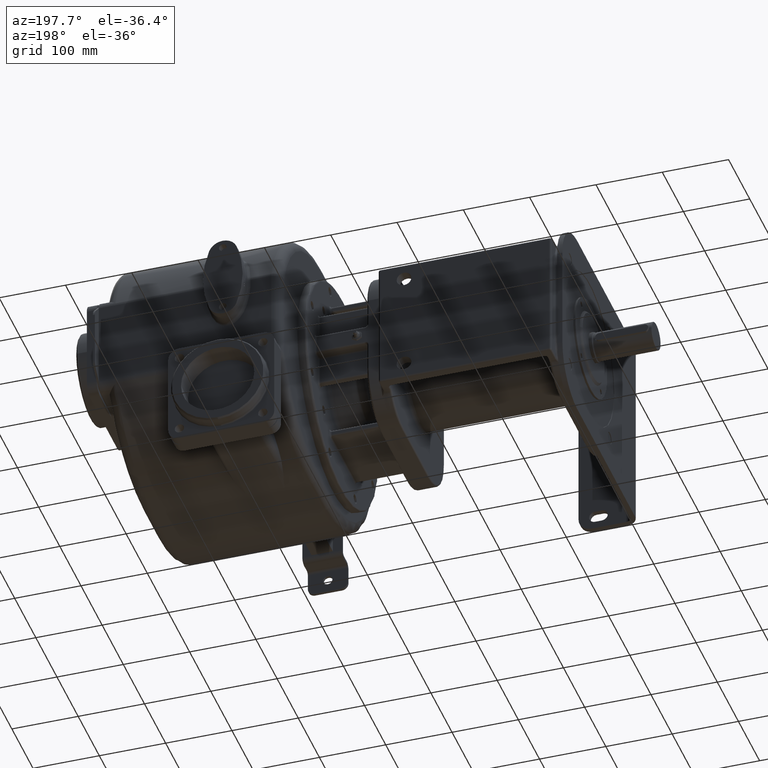
[diagram: clean part render]
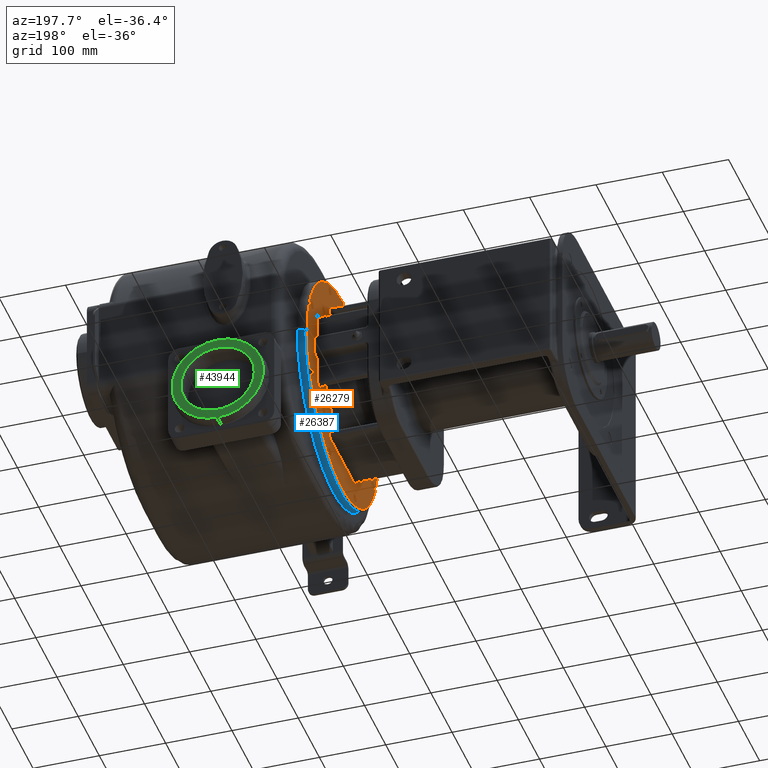
[diagram: same view with three faces highlighted in distinct colors, each labeled with its STEP entity id]
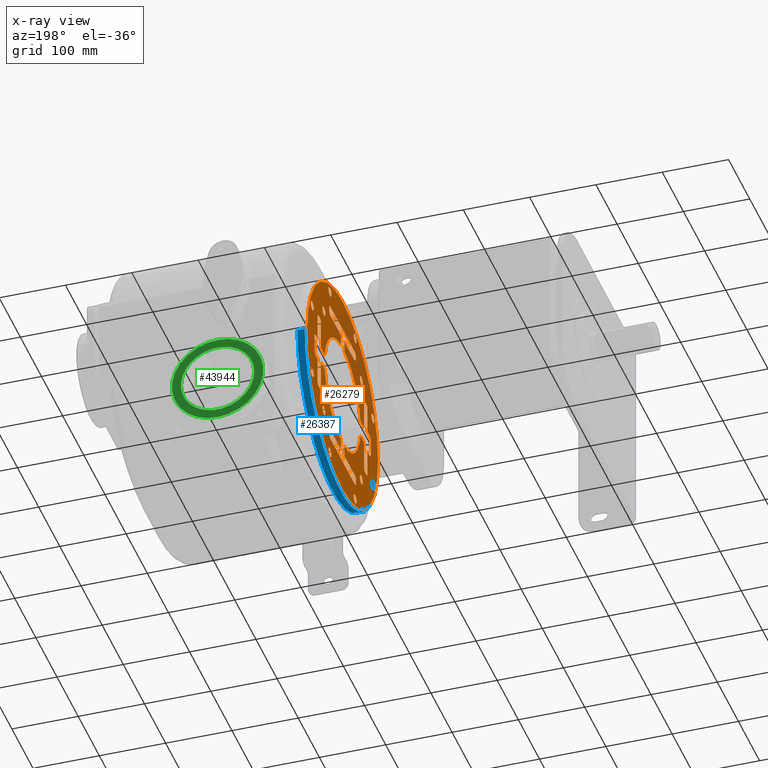
[diagram: x-ray of the same camera — body ghosted, the three highlighted faces saturated]
A machine part, auxiliary view with three faces highlighted in distinct colors.
The next image is the same camera in x-ray (body ghosted, the three faces saturated) — at least one of them is partly hidden behind the body in this view.
Their STEP definitions:

[orange] entity #26279 — the highlighted planar face has unit normal (-1, 0, 0).
#4738=CARTESIAN_POINT('',(-9.45E1,2.E2,0.E0));
#4739=DIRECTION('',(1.E0,0.E0,0.E0));
#4740=DIRECTION('',(0.E0,1.E0,0.E0));
#4741=AXIS2_PLACEMENT_3D('',#4738,#4739,#4740);
#4743=CARTESIAN_POINT('',(-9.45E1,2.E2,0.E0));
#4744=DIRECTION('',(1.E0,0.E0,0.E0));
#4745=DIRECTION('',(0.E0,-1.E0,0.E0));
#4746=AXIS2_PLACEMENT_3D('',#4743,#4744,#4745);
#4748=DIRECTION('',(0.E0,1.406874616837E-12,-1.E0));
#4749=VECTOR('',#4748,3.999999999908E0);
#4750=CARTESIAN_POINT('',(-9.45E1,2.63E2,-1.08E2));
#4751=LINE('',#4750,#4749);
#4752=CARTESIAN_POINT('',(-9.45E1,2.57E2,-1.12E2));
#4753=DIRECTION('',(-1.E0,0.E0,0.E0));
#4754=DIRECTION('',(0.E0,1.E0,0.E0));
#4755=AXIS2_PLACEMENT_3D('',#4752,#4753,#4754);
#4757=DIRECTION('',(0.E0,-1.E0,-4.886539516109E-14));
#4758=VECTOR('',#4757,1.139999999999E2);
#4759=CARTESIAN_POINT('',(-9.45E1,2.57E2,-1.18E2));
#4760=LINE('',#4759,#4758);
#4761=CARTESIAN_POINT('',(-9.45E1,1.43E2,-1.12E2));
#4762=DIRECTION('',(-1.E0,0.E0,0.E0));
#4763=DIRECTION('',(0.E0,0.E0,-1.E0));
#4764=AXIS2_PLACEMENT_3D('',#4761,#4762,#4763);
#4766=DIRECTION('',(0.E0,-1.392663762122E-12,1.E0));
#4767=VECTOR('',#4766,3.999999999908E0);
#4768=CARTESIAN_POINT('',(-9.45E1,1.37E2,-1.12E2));
#4769=LINE('',#4768,#4767);
#4770=CARTESIAN_POINT('',(-9.45E1,1.43E2,-1.08E2));
#4771=DIRECTION('',(-1.E0,0.E0,0.E0));
#4772=DIRECTION('',(0.E0,-1.E0,0.E0));
#4773=AXIS2_PLACEMENT_3D('',#4770,#4771,#4772);
#4775=DIRECTION('',(0.E0,1.E0,3.776027110039E-13));
#4776=VECTOR('',#4775,4.9E1);
#4777=CARTESIAN_POINT('',(-9.45E1,1.43E2,-1.02E2));
#4778=LINE('',#4777,#4776);
#4779=DIRECTION('',(-3.852411965349E-8,0.E0,1.E0));
#4780=VECTOR('',#4779,1.744591613903E1);
#4781=CARTESIAN_POINT('',(-9.45E1,1.92E2,-1.02E2));
#4782=LINE('',#4781,#4780);
#4783=CARTESIAN_POINT('',(-9.45E1,2.E2,0.E0));
#4784=DIRECTION('',(1.E0,0.E0,0.E0));
#4785=DIRECTION('',(0.E0,-9.882162509261E-1,-1.530641741410E-1));
#4786=AXIS2_PLACEMENT_3D('',#4783,#4784,#4785);
#4788=DIRECTION('',(3.570827083382E-8,-1.E0,0.E0));
#4789=VECTOR('',#4788,1.806911714591E1);
#4790=CARTESIAN_POINT('',(-9.450000064522E1,1.160691171459E2,-1.3E1));
#4791=LINE('',#4790,#4789);
#4792=DIRECTION('',(0.E0,-2.932603654871E-13,-1.E0));
#4793=VECTOR('',#4792,4.399999999991E1);
#4794=CARTESIAN_POINT('',(-9.45E1,9.8E1,-1.3E1));
#4795=LINE('',#4794,#4793);
#4796=CARTESIAN_POINT('',(-9.45E1,9.2E1,-5.7E1));
#4797=DIRECTION('',(-1.E0,0.E0,0.E0));
#4798=DIRECTION('',(0.E0,1.E0,0.E0));
#4799=AXIS2_PLACEMENT_3D('',#4796,#4797,#4798);
#4801=DIRECTION('',(0.E0,-1.E0,-1.394440118961E-12));
#4802=VECTOR('',#4801,3.999999999908E0);
#4803=CARTESIAN_POINT('',(-9.45E1,9.2E1,-6.299999999998E1));
#4804=LINE('',#4803,#4802);
#4805=CARTESIAN_POINT('',(-9.45E1,8.8E1,-5.7E1));
#4806=DIRECTION('',(-1.E0,0.E0,0.E0));
#4807=DIRECTION('',(0.E0,0.E0,-1.E0));
#4808=AXIS2_PLACEMENT_3D('',#4805,#4806,#4807);
#4810=DIRECTION('',(0.E0,-4.740595380635E-13,1.E0));
#4811=VECTOR('',#4810,3.9E1);
#4812=CARTESIAN_POINT('',(-9.45E1,8.200000000002E1,-5.7E1));
#4813=LINE('',#4812,#4811);
#4814=DIRECTION('',(0.E0,-1.E0,2.058994949847E-12));
#4815=VECTOR('',#4814,9.E0);
#4816=CARTESIAN_POINT('',(-9.45E1,8.2E1,-1.8E1));
#4817=LINE('',#4816,#4815);
#4818=CARTESIAN_POINT('',(-9.45E1,7.3E1,-1.2E1));
#4819=DIRECTION('',(-1.E0,0.E0,0.E0));
#4820=DIRECTION('',(0.E0,0.E0,-1.E0));
#4821=AXIS2_PLACEMENT_3D('',#4818,#4819,#4820);
#4823=DIRECTION('',(0.E0,2.332948649088E-13,1.E0));
#4824=VECTOR('',#4823,2.399999999991E1);
#4825=CARTESIAN_POINT('',(-9.45E1,6.700000000001E1,-1.199999999991E1));
#4826=LINE('',#4825,#4824);
#4827=CARTESIAN_POINT('',(-9.45E1,7.3E1,1.2E1));
#4828=DIRECTION('',(-1.E0,0.E0,0.E0));
#4829=DIRECTION('',(0.E0,-1.E0,0.E0));
#4830=AXIS2_PLACEMENT_3D('',#4827,#4828,#4829);
#4832=DIRECTION('',(0.E0,1.E0,1.436085818179E-12));
#4833=VECTOR('',#4832,8.999999999908E0);
#4834=CARTESIAN_POINT('',(-9.45E1,7.300000000009E1,1.799999999999E1));
#4835=LINE('',#4834,#4833);
#4836=DIRECTION('',(0.E0,3.312222291320E-13,1.E0));
#4837=VECTOR('',#4836,3.899999999991E1);
#4838=CARTESIAN_POINT('',(-9.45E1,8.2E1,1.8E1));
#4839=LINE('',#4838,#4837);
#4840=CARTESIAN_POINT('',(-9.45E1,8.8E1,5.7E1));
#4841=DIRECTION('',(-1.E0,0.E0,0.E0));
#4842=DIRECTION('',(0.E0,-1.E0,0.E0));
#4843=AXIS2_PLACEMENT_3D('',#4840,#4841,#4842);
#4845=DIRECTION('',(0.E0,1.E0,1.394440118961E-12));
#4846=VECTOR('',#4845,3.999999999908E0);
#4847=CARTESIAN_POINT('',(-9.45E1,8.8E1,6.299999999998E1));
#4848=LINE('',#4847,#4846);
#4849=CARTESIAN_POINT('',(-9.45E1,9.2E1,5.7E1));
#4850=DIRECTION('',(-1.E0,0.E0,0.E0));
#4851=DIRECTION('',(0.E0,0.E0,1.E0));
#4852=AXIS2_PLACEMENT_3D('',#4849,#4850,#4851);
#4854=DIRECTION('',(0.E0,4.205121099817E-13,-1.E0));
#4855=VECTOR('',#4854,4.4E1);
#4856=CARTESIAN_POINT('',(-9.45E1,9.799999999998E1,5.7E1));
#4857=LINE('',#4856,#4855);
#4858=DIRECTION('',(-3.570794759402E-8,1.E0,0.E0));
#4859=VECTOR('',#4858,1.806911714581E1);
#4860=CARTESIAN_POINT('',(-9.45E1,9.8E1,1.3E1));
#4861=LINE('',#4860,#4859);
#4862=CARTESIAN_POINT('',(-9.45E1,2.E2,0.E0));
#4863=DIRECTION('',(-1.E0,0.E0,0.E0));
#4864=DIRECTION('',(0.E0,-9.882162509262E-1,1.530641741404E-1));
#4865=AXIS2_PLACEMENT_3D('',#4862,#4863,#4864);
#4867=DIRECTION('',(3.852341586850E-8,0.E0,1.E0));
#4868=VECTOR('',#4867,1.744591613891E1);
#4869=CARTESIAN_POINT('',(-9.450000067208E1,1.92E2,8.455408386109E1));
#4870=LINE('',#4869,#4868);
#4871=DIRECTION('',(0.E0,-1.E0,2.630458209533E-13));
#4872=VECTOR('',#4871,4.899999999991E1);
#4873=CARTESIAN_POINT('',(-9.45E1,1.92E2,1.02E2));
#4874=LINE('',#4873,#4872);
#4875=CARTESIAN_POINT('',(-9.45E1,1.43E2,1.08E2));
#4876=DIRECTION('',(-1.E0,0.E0,0.E0));
#4877=DIRECTION('',(0.E0,0.E0,-1.E0));
#4878=AXIS2_PLACEMENT_3D('',#4875,#4876,#4877);
#4880=DIRECTION('',(0.E0,-1.392663762122E-12,1.E0));
#4881=VECTOR('',#4880,3.999999999908E0);
#4882=CARTESIAN_POINT('',(-9.45E1,1.37E2,1.08E2));
#4883=LINE('',#4882,#4881);
#4884=CARTESIAN_POINT('',(-9.45E1,1.43E2,1.12E2));
#4885=DIRECTION('',(-1.E0,0.E0,0.E0));
#4886=DIRECTION('',(0.E0,-1.E0,0.E0));
#4887=AXIS2_PLACEMENT_3D('',#4884,#4885,#4886);
#4889=DIRECTION('',(0.E0,1.E0,4.911470840170E-14));
#4890=VECTOR('',#4889,1.139999999999E2);
#4891=CARTESIAN_POINT('',(-9.45E1,1.43E2,1.18E2));
#4892=LINE('',#4891,#4890);
#4893=CARTESIAN_POINT('',(-9.45E1,2.57E2,1.12E2));
#4894=DIRECTION('',(-1.E0,0.E0,0.E0));
#4895=DIRECTION('',(0.E0,0.E0,1.E0));
#4896=AXIS2_PLACEMENT_3D('',#4893,#4894,#4895);
#4898=DIRECTION('',(0.E0,1.406874616837E-12,-1.E0));
#4899=VECTOR('',#4898,3.999999999908E0);
#4900=CARTESIAN_POINT('',(-9.45E1,2.63E2,1.12E2));
#4901=LINE('',#4900,#4899);
#4902=CARTESIAN_POINT('',(-9.45E1,2.57E2,1.08E2));
#4903=DIRECTION('',(-1.E0,0.E0,0.E0));
#4904=DIRECTION('',(0.E0,1.E0,0.E0));
#4905=AXIS2_PLACEMENT_3D('',#4902,#4903,#4904);
#4907=DIRECTION('',(0.E0,-1.E0,-3.773126935608E-13));
#4908=VECTOR('',#4907,4.9E1);
#4909=CARTESIAN_POINT('',(-9.45E1,2.57E2,1.02E2));
#4910=LINE('',#4909,#4908);
#4911=DIRECTION('',(-3.852411965349E-8,0.E0,-1.E0));
#4912=VECTOR('',#4911,1.744591613903E1);
#4913=CARTESIAN_POINT('',(-9.45E1,2.08E2,1.02E2));
#4914=LINE('',#4913,#4912);
#4915=CARTESIAN_POINT('',(-9.45E1,2.E2,0.E0));
#4916=DIRECTION('',(-1.E0,0.E0,0.E0));
#4917=DIRECTION('',(0.E0,9.419333790944E-2,9.955539237497E-1));
#4918=AXIS2_PLACEMENT_3D('',#4915,#4916,#4917);
#4920=DIRECTION('',(3.570827083382E-8,1.E0,0.E0));
#4921=VECTOR('',#4920,1.806911714591E1);
#4922=CARTESIAN_POINT('',(-9.450000064522E1,2.839308828541E2,1.3E1));
#4923=LINE('',#4922,#4921);
#4924=DIRECTION('',(0.E0,2.919684696039E-13,1.E0));
#4925=VECTOR('',#4924,4.399999999991E1);
#4926=CARTESIAN_POINT('',(-9.45E1,3.02E2,1.3E1));
#4927=LINE('',#4926,#4925);
#4928=CARTESIAN_POINT('',(-9.45E1,3.08E2,5.7E1));
#4929=DIRECTION('',(-1.E0,0.E0,0.E0));
#4930=DIRECTION('',(0.E0,-1.E0,0.E0));
#4931=AXIS2_PLACEMENT_3D('',#4928,#4929,#4930);
#4933=DIRECTION('',(0.E0,1.E0,1.394440118961E-12));
#4934=VECTOR('',#4933,3.999999999908E0);
#4935=CARTESIAN_POINT('',(-9.45E1,3.08E2,6.299999999998E1));
#4936=LINE('',#4935,#4934);
#4937=CARTESIAN_POINT('',(-9.45E1,3.12E2,5.7E1));
#4938=DIRECTION('',(-1.E0,0.E0,0.E0));
#4939=DIRECTION('',(0.E0,0.E0,1.E0));
#4940=AXIS2_PLACEMENT_3D('',#4937,#4938,#4939);
#4942=DIRECTION('',(0.E0,4.751526807339E-13,-1.E0));
#4943=VECTOR('',#4942,3.9E1);
#4944=CARTESIAN_POINT('',(-9.45E1,3.18E2,5.7E1));
#4945=LINE('',#4944,#4943);
#4946=DIRECTION('',(0.E0,1.E0,-1.434901580286E-12));
#4947=VECTOR('',#4946,8.999999999908E0);
#4948=CARTESIAN_POINT('',(-9.45E1,3.18E2,1.8E1));
#4949=LINE('',#4948,#4947);
#4950=CARTESIAN_POINT('',(-9.45E1,3.27E2,1.2E1));
#4951=DIRECTION('',(-1.E0,0.E0,0.E0));
#4952=DIRECTION('',(0.E0,0.E0,1.E0));
#4953=AXIS2_PLACEMENT_3D('',#4950,#4951,#4952);
#4955=DIRECTION('',(0.E0,2.344791028017E-13,-1.E0));
#4956=VECTOR('',#4955,2.399999999991E1);
#4957=CARTESIAN_POINT('',(-9.45E1,3.33E2,1.2E1));
#4958=LINE('',#4957,#4956);
#4959=CARTESIAN_POINT('',(-9.45E1,3.27E2,-1.2E1));
#4960=DIRECTION('',(-1.E0,0.E0,0.E0));
#4961=DIRECTION('',(0.E0,1.E0,0.E0));
#4962=AXIS2_PLACEMENT_3D('',#4959,#4960,#4961);
#4964=DIRECTION('',(0.E0,-1.E0,-2.055836982133E-12));
#4965=VECTOR('',#4964,9.E0);
#4966=CARTESIAN_POINT('',(-9.45E1,3.27E2,-1.799999999998E1));
#4967=LINE('',#4966,#4965);
#4968=DIRECTION('',(0.E0,-3.308578482419E-13,-1.E0));
#4969=VECTOR('',#4968,3.899999999991E1);
#4970=CARTESIAN_POINT('',(-9.45E1,3.18E2,-1.8E1));
#4971=LINE('',#4970,#4969);
#4972=CARTESIAN_POINT('',(-9.45E1,3.12E2,-5.7E1));
#4973=DIRECTION('',(-1.E0,0.E0,0.E0));
#4974=DIRECTION('',(0.E0,1.E0,0.E0));
#4975=AXIS2_PLACEMENT_3D('',#4972,#4973,#4974);
#4977=DIRECTION('',(0.E0,-1.E0,-1.394440118961E-12));
#4978=VECTOR('',#4977,3.999999999908E0);
#4979=CARTESIAN_POINT('',(-9.45E1,3.12E2,-6.299999999998E1));
#4980=LINE('',#4979,#4978);
#4981=CARTESIAN_POINT('',(-9.45E1,3.08E2,-5.7E1));
#4982=DIRECTION('',(-1.E0,0.E0,0.E0));
#4983=DIRECTION('',(0.E0,0.E0,-1.E0));
#4984=AXIS2_PLACEMENT_3D('',#4981,#4982,#4983);
#4986=DIRECTION('',(0.E0,-4.198661620401E-13,1.E0));
#4987=VECTOR('',#4986,4.4E1);
#4988=CARTESIAN_POINT('',(-9.45E1,3.02E2,-5.7E1));
#4989=LINE('',#4988,#4987);
#4990=DIRECTION('',(-3.570794759402E-8,-1.E0,0.E0));
#4991=VECTOR('',#4990,1.806911714581E1);
#4992=CARTESIAN_POINT('',(-9.45E1,3.02E2,-1.3E1));
#4993=LINE('',#4992,#4991);
#4994=CARTESIAN_POINT('',(-9.45E1,2.E2,0.E0));
#4995=DIRECTION('',(1.E0,0.E0,0.E0));
#4996=DIRECTION('',(0.E0,9.419333790891E-2,-9.955539237498E-1));
#4997=AXIS2_PLACEMENT_3D('',#4994,#4995,#4996);
#4999=DIRECTION('',(3.852341505394E-8,0.E0,-1.E0));
#5000=VECTOR('',#4999,1.744591613891E1);
#5001=CARTESIAN_POINT('',(-9.450000067208E1,2.08E2,-8.455408386109E1));
#5002=LINE('',#5001,#5000);
#5003=DIRECTION('',(0.E0,1.E0,-2.636258558397E-13));
#5004=VECTOR('',#5003,4.899999999991E1);
#5005=CARTESIAN_POINT('',(-9.45E1,2.08E2,-1.02E2));
#5006=LINE('',#5005,#5004);
#5007=CARTESIAN_POINT('',(-9.45E1,2.57E2,-1.08E2));
#5008=DIRECTION('',(-1.E0,0.E0,0.E0));
#5009=DIRECTION('',(0.E0,0.E0,1.E0));
#5010=AXIS2_PLACEMENT_3D('',#5007,#5008,#5009);
#5012=CARTESIAN_POINT('',(-9.45E1,1.406840679834E2,-1.432013275392E2));
#5013=DIRECTION('',(1.E0,0.E0,0.E0));
#5014=DIRECTION('',(0.E0,1.E0,0.E0));
#5015=AXIS2_PLACEMENT_3D('',#5012,#5013,#5014);
#5017=CARTESIAN_POINT('',(-9.45E1,1.406840679834E2,-1.432013275392E2));
#5018=DIRECTION('',(1.E0,0.E0,0.E0));
#5019=DIRECTION('',(0.E0,-1.E0,0.E0));
#5020=AXIS2_PLACEMENT_3D('',#5017,#5018,#5019);
#5022=CARTESIAN_POINT('',(-9.45E1,5.679867246075E1,-5.931593201659E1));
#5023=DIRECTION('',(-1.E0,0.E0,0.E0));
#5024=DIRECTION('',(0.E0,-7.071067811865E-1,7.071067811865E-1));
#5025=AXIS2_PLACEMENT_3D('',#5022,#5023,#5024);
#5027=CARTESIAN_POINT('',(-9.45E1,5.679867246075E1,-5.931593201659E1));
#5028=DIRECTION('',(-1.E0,0.E0,0.E0));
#5029=DIRECTION('',(0.E0,7.071067811865E-1,-7.071067811865E-1));
#5030=AXIS2_PLACEMENT_3D('',#5027,#5028,#5029);
#5032=CARTESIAN_POINT('',(-9.45E1,5.679867246075E1,5.931593201659E1));
#5033=DIRECTION('',(-1.E0,0.E0,0.E0));
#5034=DIRECTION('',(0.E0,0.E0,1.E0));
#5035=AXIS2_PLACEMENT_3D('',#5032,#5033,#5034);
#5037=CARTESIAN_POINT('',(-9.45E1,5.679867246075E1,5.931593201659E1));
#5038=DIRECTION('',(-1.E0,0.E0,0.E0));
#5039=DIRECTION('',(0.E0,0.E0,-1.E0));
#5040=AXIS2_PLACEMENT_3D('',#5037,#5038,#5039);
#5042=CARTESIAN_POINT('',(-9.45E1,1.406840679834E2,1.432013275392E2));
#5043=DIRECTION('',(-1.E0,0.E0,0.E0));
#5044=DIRECTION('',(0.E0,7.071067811865E-1,7.071067811865E-1));
#5045=AXIS2_PLACEMENT_3D('',#5042,#5043,#5044);
#5047=CARTESIAN_POINT('',(-9.45E1,1.406840679834E2,1.432013275392E2));
#5048=DIRECTION('',(-1.E0,0.E0,0.E0));
#5049=DIRECTION('',(0.E0,-7.071067811865E-1,-7.071067811865E-1));
#5050=AXIS2_PLACEMENT_3D('',#5047,#5048,#5049);
#5052=CARTESIAN_POINT('',(-9.45E1,2.593159320166E2,1.432013275392E2));
#5053=DIRECTION('',(-1.E0,0.E0,0.E0));
#5054=DIRECTION('',(0.E0,1.E0,0.E0));
#5055=AXIS2_PLACEMENT_3D('',#5052,#5053,#5054);
#5057=CARTESIAN_POINT('',(-9.45E1,2.593159320166E2,1.432013275392E2));
#5058=DIRECTION('',(-1.E0,0.E0,0.E0));
#5059=DIRECTION('',(0.E0,-1.E0,0.E0));
#5060=AXIS2_PLACEMENT_3D('',#5057,#5058,#5059);
#5062=CARTESIAN_POINT('',(-9.45E1,3.432013275392E2,5.931593201659E1));
#5063=DIRECTION('',(-1.E0,0.E0,0.E0));
#5064=DIRECTION('',(0.E0,7.071067811865E-1,-7.071067811865E-1));
#5065=AXIS2_PLACEMENT_3D('',#5062,#5063,#5064);
#5067=CARTESIAN_POINT('',(-9.45E1,3.432013275392E2,5.931593201659E1));
#5068=DIRECTION('',(-1.E0,0.E0,0.E0));
#5069=DIRECTION('',(0.E0,-7.071067811865E-1,7.071067811865E-1));
#5070=AXIS2_PLACEMENT_3D('',#5067,#5068,#5069);
#5072=CARTESIAN_POINT('',(-9.45E1,3.432013275392E2,-5.931593201659E1));
#5073=DIRECTION('',(-1.E0,0.E0,0.E0));
#5074=DIRECTION('',(0.E0,0.E0,-1.E0));
#5075=AXIS2_PLACEMENT_3D('',#5072,#5073,#5074);
#5077=CARTESIAN_POINT('',(-9.45E1,3.432013275392E2,-5.931593201659E1));
#5078=DIRECTION('',(-1.E0,0.E0,0.E0));
#5079=DIRECTION('',(0.E0,0.E0,1.E0));
#5080=AXIS2_PLACEMENT_3D('',#5077,#5078,#5079);
#5082=CARTESIAN_POINT('',(-9.45E1,2.593159320166E2,-1.432013275392E2));
#5083=DIRECTION('',(-1.E0,0.E0,0.E0));
#5084=DIRECTION('',(0.E0,-7.071067811865E-1,-7.071067811865E-1));
#5085=AXIS2_PLACEMENT_3D('',#5082,#5083,#5084);
#5087=CARTESIAN_POINT('',(-9.45E1,2.593159320166E2,-1.432013275392E2));
#5088=DIRECTION('',(-1.E0,0.E0,0.E0));
#5089=DIRECTION('',(0.E0,7.071067811866E-1,7.071067811865E-1));
#5090=AXIS2_PLACEMENT_3D('',#5087,#5088,#5089);
#5092=CARTESIAN_POINT('',(-9.45E1,1.116116523517E2,-8.838834764832E1));
#5093=DIRECTION('',(1.E0,0.E0,0.E0));
#5094=DIRECTION('',(0.E0,1.E0,0.E0));
#5095=AXIS2_PLACEMENT_3D('',#5092,#5093,#5094);
#5097=CARTESIAN_POINT('',(-9.45E1,1.116116523517E2,-8.838834764832E1));
#5098=DIRECTION('',(1.E0,0.E0,0.E0));
#5099=DIRECTION('',(0.E0,-1.E0,0.E0));
#5100=AXIS2_PLACEMENT_3D('',#5097,#5098,#5099);
#5102=CARTESIAN_POINT('',(-9.45E1,1.116116523517E2,8.838834764832E1));
#5103=DIRECTION('',(-1.E0,0.E0,0.E0));
#5104=DIRECTION('',(0.E0,0.E0,1.E0));
#5105=AXIS2_PLACEMENT_3D('',#5102,#5103,#5104);
#5107=CARTESIAN_POINT('',(-9.45E1,1.116116523517E2,8.838834764832E1));
#5108=DIRECTION('',(-1.E0,0.E0,0.E0));
#5109=DIRECTION('',(0.E0,0.E0,-1.E0));
#5110=AXIS2_PLACEMENT_3D('',#5107,#5108,#5109);
#5112=CARTESIAN_POINT('',(-9.45E1,2.883883476483E2,8.838834764832E1));
#5113=DIRECTION('',(-1.E0,0.E0,0.E0));
#5114=DIRECTION('',(0.E0,1.E0,0.E0));
#5115=AXIS2_PLACEMENT_3D('',#5112,#5113,#5114);
#5117=CARTESIAN_POINT('',(-9.45E1,2.883883476483E2,8.838834764832E1));
#5118=DIRECTION('',(-1.E0,0.E0,0.E0));
#5119=DIRECTION('',(0.E0,-1.E0,0.E0));
#5120=AXIS2_PLACEMENT_3D('',#5117,#5118,#5119);
#5122=CARTESIAN_POINT('',(-9.45E1,2.883883476483E2,-8.838834764832E1));
#5123=DIRECTION('',(-1.E0,0.E0,0.E0));
#5124=DIRECTION('',(0.E0,0.E0,-1.E0));
#5125=AXIS2_PLACEMENT_3D('',#5122,#5123,#5124);
#5127=CARTESIAN_POINT('',(-9.45E1,2.883883476483E2,-8.838834764832E1));
#5128=DIRECTION('',(-1.E0,0.E0,0.E0));
#5129=DIRECTION('',(0.E0,0.E0,1.E0));
#5130=AXIS2_PLACEMENT_3D('',#5127,#5128,#5129);
#19091=CARTESIAN_POINT('',(-9.45E1,2.63E2,-1.08E2));
#19092=CARTESIAN_POINT('',(-9.45E1,2.63E2,-1.119999999999E2));
#19093=VERTEX_POINT('',#19091);
#19094=VERTEX_POINT('',#19092);
#19095=CARTESIAN_POINT('',(-9.45E1,6.700000000001E1,-1.199999999991E1));
#19096=CARTESIAN_POINT('',(-9.45E1,6.700000000002E1,1.2E1));
#19097=VERTEX_POINT('',#19095);
#19098=VERTEX_POINT('',#19096);
#19103=CARTESIAN_POINT('',(-9.45E1,1.37E2,-1.12E2));
#19104=CARTESIAN_POINT('',(-9.45E1,1.37E2,-1.080000000001E2));
#19105=VERTEX_POINT('',#19103);
#19106=VERTEX_POINT('',#19104);
#19115=CARTESIAN_POINT('',(-9.45E1,1.37E2,1.08E2));
#19116=CARTESIAN_POINT('',(-9.45E1,1.37E2,1.119999999999E2));
#19117=VERTEX_POINT('',#19115);
#19118=VERTEX_POINT('',#19116);
#19119=CARTESIAN_POINT('',(-9.45E1,3.33E2,1.2E1));
#19120=CARTESIAN_POINT('',(-9.45E1,3.33E2,-1.199999999991E1));
#19121=VERTEX_POINT('',#19119);
#19122=VERTEX_POINT('',#19120);
#19127=CARTESIAN_POINT('',(-9.45E1,2.63E2,1.12E2));
#19128=CARTESIAN_POINT('',(-9.45E1,2.63E2,1.080000000001E2));
#19129=VERTEX_POINT('',#19127);
#19130=VERTEX_POINT('',#19128);
#19167=CARTESIAN_POINT('',(-9.45E1,1.160691171322E2,1.300000000910E1));
#19168=CARTESIAN_POINT('',(-9.45E1,1.919999999964E2,8.455408387031E1));
#19169=VERTEX_POINT('',#19167);
#19170=VERTEX_POINT('',#19168);
#19171=CARTESIAN_POINT('',(-9.45E1,2.080000000036E2,8.455408387031E1));
#19172=CARTESIAN_POINT('',(-9.45E1,2.839308828678E2,1.300000000915E1));
#19173=VERTEX_POINT('',#19171);
#19174=VERTEX_POINT('',#19172);
#19175=CARTESIAN_POINT('',(-9.45E1,1.160691171322E2,-1.300000000915E1));
#19176=CARTESIAN_POINT('',(-9.45E1,1.919999999964E2,-8.455408387031E1));
#19177=VERTEX_POINT('',#19175);
#19178=VERTEX_POINT('',#19176);
#19179=CARTESIAN_POINT('',(-9.45E1,2.080000000036E2,-8.455408387031E1));
#19180=CARTESIAN_POINT('',(-9.45E1,2.839308828678E2,-1.300000000910E1));
#19181=VERTEX_POINT('',#19179);
#19182=VERTEX_POINT('',#19180);
#19183=CARTESIAN_POINT('',(-9.45E1,5.184892499244E1,-5.436618454828E1));
#19184=CARTESIAN_POINT('',(-9.45E1,6.174841992906E1,-6.426567948489E1));
#19185=VERTEX_POINT('',#19183);
#19186=VERTEX_POINT('',#19184);
#19187=CARTESIAN_POINT('',(-9.45E1,5.679867246075E1,6.631593201659E1));
#19188=CARTESIAN_POINT('',(-9.45E1,5.679867246075E1,5.231593201659E1));
#19189=VERTEX_POINT('',#19187);
#19190=VERTEX_POINT('',#19188);
#19191=CARTESIAN_POINT('',(-9.45E1,1.456338154517E2,1.481510750076E2));
#19192=CARTESIAN_POINT('',(-9.45E1,1.357343205151E2,1.382515800709E2));
#19193=VERTEX_POINT('',#19191);
#19194=VERTEX_POINT('',#19192);
#19195=CARTESIAN_POINT('',(-9.45E1,2.663159320166E2,1.432013275392E2));
#19196=CARTESIAN_POINT('',(-9.45E1,2.523159320166E2,1.432013275392E2));
#19197=VERTEX_POINT('',#19195);
#19198=VERTEX_POINT('',#19196);
#19199=CARTESIAN_POINT('',(-9.45E1,3.481510750076E2,5.436618454828E1));
#19200=CARTESIAN_POINT('',(-9.45E1,3.382515800709E2,6.426567948489E1));
#19201=VERTEX_POINT('',#19199);
#19202=VERTEX_POINT('',#19200);
#19203=CARTESIAN_POINT('',(-9.45E1,3.432013275392E2,-6.631593201659E1));
#19204=CARTESIAN_POINT('',(-9.45E1,3.432013275392E2,-5.231593201659E1));
#19205=VERTEX_POINT('',#19203);
#19206=VERTEX_POINT('',#19204);
#19207=CARTESIAN_POINT('',(-9.45E1,2.543661845483E2,-1.481510750076E2));
#19208=CARTESIAN_POINT('',(-9.45E1,2.642656794849E2,-1.382515800709E2));
#19209=VERTEX_POINT('',#19207);
#19210=VERTEX_POINT('',#19208);
#19227=CARTESIAN_POINT('',(-9.45E1,1.186116523517E2,-8.838834764832E1));
#19228=CARTESIAN_POINT('',(-9.45E1,1.046116523517E2,-8.838834764832E1));
#19229=VERTEX_POINT('',#19227);
#19230=VERTEX_POINT('',#19228);
#19231=CARTESIAN_POINT('',(-9.45E1,1.116116523517E2,9.538834764832E1));
#19232=CARTESIAN_POINT('',(-9.45E1,1.116116523517E2,8.138834764832E1));
#19233=VERTEX_POINT('',#19231);
#19234=VERTEX_POINT('',#19232);
#19235=CARTESIAN_POINT('',(-9.45E1,2.953883476483E2,8.838834764832E1));
#19236=CARTESIAN_POINT('',(-9.45E1,2.813883476483E2,8.838834764832E1));
#19237=VERTEX_POINT('',#19235);
#19238=VERTEX_POINT('',#19236);
#19239=CARTESIAN_POINT('',(-9.45E1,2.883883476483E2,-9.538834764832E1));
#19240=CARTESIAN_POINT('',(-9.45E1,2.883883476483E2,-8.138834764832E1));
#19241=VERTEX_POINT('',#19239);
#19242=VERTEX_POINT('',#19240);
#19243=CARTESIAN_POINT('',(-9.45E1,1.476840679834E2,-1.432013275392E2));
#19244=CARTESIAN_POINT('',(-9.45E1,1.336840679834E2,-1.432013275392E2));
#19245=VERTEX_POINT('',#19243);
#19246=VERTEX_POINT('',#19244);
#19267=CARTESIAN_POINT('',(-9.45E1,3.67E2,-3.986223975972E-14));
#19268=CARTESIAN_POINT('',(-9.45E1,3.3E1,6.239576796908E-14));
#19269=VERTEX_POINT('',#19267);
#19270=VERTEX_POINT('',#19268);
#19291=CARTESIAN_POINT('',(-9.45E1,3.02E2,1.3E1));
#19292=CARTESIAN_POINT('',(-9.45E1,3.02E2,5.699999999991E1));
#19293=VERTEX_POINT('',#19291);
#19294=VERTEX_POINT('',#19292);
#19295=CARTESIAN_POINT('',(-9.45E1,3.08E2,6.299999999998E1));
#19296=CARTESIAN_POINT('',(-9.45E1,3.119999999999E2,6.299999999999E1));
#19297=VERTEX_POINT('',#19295);
#19298=VERTEX_POINT('',#19296);
#19303=CARTESIAN_POINT('',(-9.45E1,3.12E2,-6.299999999998E1));
#19304=CARTESIAN_POINT('',(-9.45E1,3.080000000001E2,-6.299999999999E1));
#19305=VERTEX_POINT('',#19303);
#19306=VERTEX_POINT('',#19304);
#19311=CARTESIAN_POINT('',(-9.45E1,3.02E2,-5.7E1));
#19312=VERTEX_POINT('',#19311);
#19315=CARTESIAN_POINT('',(-9.45E1,3.02E2,-1.3E1));
#19316=VERTEX_POINT('',#19315);
#19342=CARTESIAN_POINT('',(-9.45E1,2.08E2,-1.02E2));
#19343=CARTESIAN_POINT('',(-9.45E1,2.569999999999E2,-1.02E2));
#19344=VERTEX_POINT('',#19342);
#19345=VERTEX_POINT('',#19343);
#19346=CARTESIAN_POINT('',(-9.45E1,1.43E2,-1.02E2));
#19347=VERTEX_POINT('',#19346);
#19350=CARTESIAN_POINT('',(-9.45E1,1.92E2,-1.02E2));
#19351=VERTEX_POINT('',#19350);
#19386=CARTESIAN_POINT('',(-9.45E1,9.8E1,-1.3E1));
#19387=CARTESIAN_POINT('',(-9.45E1,9.799999999999E1,-5.699999999991E1));
#19388=VERTEX_POINT('',#19386);
#19389=VERTEX_POINT('',#19387);
#19390=CARTESIAN_POINT('',(-9.45E1,9.2E1,-6.299999999998E1));
#19391=CARTESIAN_POINT('',(-9.45E1,8.800000000009E1,-6.299999999999E1));
#19392=VERTEX_POINT('',#19390);
#19393=VERTEX_POINT('',#19391);
#19398=CARTESIAN_POINT('',(-9.45E1,8.8E1,6.299999999998E1));
#19399=CARTESIAN_POINT('',(-9.45E1,9.199999999991E1,6.299999999999E1));
#19400=VERTEX_POINT('',#19398);
#19401=VERTEX_POINT('',#19399);
#19406=CARTESIAN_POINT('',(-9.45E1,9.8E1,5.7E1));
#19407=VERTEX_POINT('',#19406);
#19410=CARTESIAN_POINT('',(-9.45E1,9.8E1,1.3E1));
#19411=VERTEX_POINT('',#19410);
#19453=CARTESIAN_POINT('',(-9.45E1,1.92E2,1.02E2));
#19454=CARTESIAN_POINT('',(-9.45E1,1.430000000001E2,1.02E2));
#19455=VERTEX_POINT('',#19453);
#19456=VERTEX_POINT('',#19454);
#19457=CARTESIAN_POINT('',(-9.45E1,2.57E2,1.02E2));
#19458=VERTEX_POINT('',#19457);
#19461=CARTESIAN_POINT('',(-9.45E1,2.08E2,1.02E2));
#19462=VERTEX_POINT('',#19461);
#19589=CARTESIAN_POINT('',(-9.45E1,3.18E2,-5.7E1));
#19590=VERTEX_POINT('',#19589);
#19593=CARTESIAN_POINT('',(-9.45E1,3.18E2,-1.8E1));
#19594=VERTEX_POINT('',#19593);
#19599=CARTESIAN_POINT('',(-9.45E1,3.27E2,-1.799999999998E1));
#19600=VERTEX_POINT('',#19599);
#19603=CARTESIAN_POINT('',(-9.45E1,3.18E2,1.8E1));
#19604=CARTESIAN_POINT('',(-9.45E1,3.269999999999E2,1.799999999999E1));
#19605=VERTEX_POINT('',#19603);
#19606=VERTEX_POINT('',#19604);
#19613=CARTESIAN_POINT('',(-9.45E1,3.18E2,5.7E1));
#19614=VERTEX_POINT('',#19613);
#19617=CARTESIAN_POINT('',(-9.45E1,1.43E2,-1.18E2));
#19618=VERTEX_POINT('',#19617);
#19621=CARTESIAN_POINT('',(-9.45E1,2.57E2,-1.18E2));
#19622=VERTEX_POINT('',#19621);
#19625=CARTESIAN_POINT('',(-9.45E1,8.2E1,5.7E1));
#19626=VERTEX_POINT('',#19625);
#19629=CARTESIAN_POINT('',(-9.45E1,8.2E1,1.8E1));
#19630=VERTEX_POINT('',#19629);
#19635=CARTESIAN_POINT('',(-9.45E1,7.300000000009E1,1.799999999999E1));
#19636=VERTEX_POINT('',#19635);
#19639=CARTESIAN_POINT('',(-9.45E1,8.2E1,-1.8E1));
#19640=CARTESIAN_POINT('',(-9.45E1,7.3E1,-1.799999999998E1));
#19641=VERTEX_POINT('',#19639);
#19642=VERTEX_POINT('',#19640);
#19649=CARTESIAN_POINT('',(-9.45E1,8.200000000002E1,-5.7E1));
#19650=VERTEX_POINT('',#19649);
#19653=CARTESIAN_POINT('',(-9.45E1,2.57E2,1.18E2));
#19654=VERTEX_POINT('',#19653);
#19657=CARTESIAN_POINT('',(-9.45E1,1.43E2,1.18E2));
#19658=VERTEX_POINT('',#19657);
#26075=CARTESIAN_POINT('',(-9.45E1,2.E2,0.E0));
#26076=DIRECTION('',(-1.E0,0.E0,0.E0));
#26077=DIRECTION('',(0.E0,1.E0,0.E0));
#26078=AXIS2_PLACEMENT_3D('',#26075,#26076,#26077);
#26079=PLANE('',#26078);
#26081=ORIENTED_EDGE('',*,*,#26080,.T.);
#26083=ORIENTED_EDGE('',*,*,#26082,.T.);
#26084=EDGE_LOOP('',(#26081,#26083));
#26085=FACE_OUTER_BOUND('',#26084,.F.);
#26087=ORIENTED_EDGE('',*,*,#26086,.T.);
#26089=ORIENTED_EDGE('',*,*,#26088,.T.);
#26091=ORIENTED_EDGE('',*,*,#26090,.T.);
#26093=ORIENTED_EDGE('',*,*,#26092,.T.);
#26095=ORIENTED_EDGE('',*,*,#26094,.T.);
#26097=ORIENTED_EDGE('',*,*,#26096,.T.);
#26098=ORIENTED_EDGE('',*,*,#26065,.T.);
#26100=ORIENTED_EDGE('',*,*,#26099,.T.);
#26102=ORIENTED_EDGE('',*,*,#26101,.F.);
#26104=ORIENTED_EDGE('',*,*,#26103,.T.);
#26106=ORIENTED_EDGE('',*,*,#26105,.T.);
#26108=ORIENTED_EDGE('',*,*,#26107,.T.);
#26110=ORIENTED_EDGE('',*,*,#26109,.T.);
#26112=ORIENTED_EDGE('',*,*,#26111,.T.);
#26114=ORIENTED_EDGE('',*,*,#26113,.T.);
#26116=ORIENTED_EDGE('',*,*,#26115,.T.);
#26118=ORIENTED_EDGE('',*,*,#26117,.T.);
#26120=ORIENTED_EDGE('',*,*,#26119,.T.);
#26122=ORIENTED_EDGE('',*,*,#26121,.T.);
#26124=ORIENTED_EDGE('',*,*,#26123,.T.);
#26126=ORIENTED_EDGE('',*,*,#26125,.T.);
#26128=ORIENTED_EDGE('',*,*,#26127,.T.);
#26130=ORIENTED_EDGE('',*,*,#26129,.T.);
#26132=ORIENTED_EDGE('',*,*,#26131,.T.);
#26134=ORIENTED_EDGE('',*,*,#26133,.T.);
#26136=ORIENTED_EDGE('',*,*,#26135,.T.);
#26138=ORIENTED_EDGE('',*,*,#26137,.T.);
#26140=ORIENTED_EDGE('',*,*,#26139,.T.);
#26142=ORIENTED_EDGE('',*,*,#26141,.T.);
#26144=ORIENTED_EDGE('',*,*,#26143,.T.);
#26146=ORIENTED_EDGE('',*,*,#26145,.T.);
#26148=ORIENTED_EDGE('',*,*,#26147,.T.);
#26150=ORIENTED_EDGE('',*,*,#26149,.T.);
#26152=ORIENTED_EDGE('',*,*,#26151,.T.);
#26154=ORIENTED_EDGE('',*,*,#26153,.T.);
#26156=ORIENTED_EDGE('',*,*,#26155,.T.);
#26158=ORIENTED_EDGE('',*,*,#26157,.T.);
#26160=ORIENTED_EDGE('',*,*,#26159,.T.);
#26162=ORIENTED_EDGE('',*,*,#26161,.T.);
#26164=ORIENTED_EDGE('',*,*,#26163,.T.);
#26166=ORIENTED_EDGE('',*,*,#26165,.T.);
#26168=ORIENTED_EDGE('',*,*,#26167,.T.);
#26170=ORIENTED_EDGE('',*,*,#26169,.T.);
#26172=ORIENTED_EDGE('',*,*,#26171,.T.);
#26174=ORIENTED_EDGE('',*,*,#26173,.T.);
#26176=ORIENTED_EDGE('',*,*,#26175,.T.);
#26178=ORIENTED_EDGE('',*,*,#26177,.T.);
#26180=ORIENTED_EDGE('',*,*,#26179,.T.);
#26182=ORIENTED_EDGE('',*,*,#26181,.T.);
#26184=ORIENTED_EDGE('',*,*,#26183,.T.);
#26186=ORIENTED_EDGE('',*,*,#26185,.T.);
#26188=ORIENTED_EDGE('',*,*,#26187,.T.);
#26190=ORIENTED_EDGE('',*,*,#26189,.T.);
#26192=ORIENTED_EDGE('',*,*,#26191,.T.);
#26194=ORIENTED_EDGE('',*,*,#26193,.T.);
#26196=ORIENTED_EDGE('',*,*,#26195,.T.);
#26198=ORIENTED_EDGE('',*,*,#26197,.F.);
#26200=ORIENTED_EDGE('',*,*,#26199,.T.);
#26202=ORIENTED_EDGE('',*,*,#26201,.T.);
#26204=ORIENTED_EDGE('',*,*,#26203,.T.);
#26205=EDGE_LOOP('',(#26087,#26089,#26091,#26093,#26095,#26097,#26098,#26100,
#26102,#26104,#26106,#26108,#26110,#26112,#26114,#26116,#26118,#26120,#26122,
#26124,#26126,#26128,#26130,#26132,#26134,#26136,#26138,#26140,#26142,#26144,
#26146,#26148,#26150,#26152,#26154,#26156,#26158,#26160,#26162,#26164,#26166,
#26168,#26170,#26172,#26174,#26176,#26178,#26180,#26182,#26184,#26186,#26188,
#26190,#26192,#26194,#26196,#26198,#26200,#26202,#26204));
#26206=FACE_BOUND('',#26205,.F.);
#26208=ORIENTED_EDGE('',*,*,#26207,.F.);
#26210=ORIENTED_EDGE('',*,*,#26209,.F.);
#26211=EDGE_LOOP('',(#26208,#26210));
#26212=FACE_BOUND('',#26211,.F.);
#26214=ORIENTED_EDGE('',*,*,#26213,.T.);
#26216=ORIENTED_EDGE('',*,*,#26215,.T.);
#26217=EDGE_LOOP('',(#26214,#26216));
#26218=FACE_BOUND('',#26217,.F.);
#26220=ORIENTED_EDGE('',*,*,#26219,.T.);
#26222=ORIENTED_EDGE('',*,*,#26221,.T.);
#26223=EDGE_LOOP('',(#26220,#26222));
#26224=FACE_BOUND('',#26223,.F.);
#26226=ORIENTED_EDGE('',*,*,#26225,.T.);
#26228=ORIENTED_EDGE('',*,*,#26227,.T.);
#26229=EDGE_LOOP('',(#26226,#26228));
#26230=FACE_BOUND('',#26229,.F.);
#26232=ORIENTED_EDGE('',*,*,#26231,.T.);
#26234=ORIENTED_EDGE('',*,*,#26233,.T.);
#26235=EDGE_LOOP('',(#26232,#26234));
#26236=FACE_BOUND('',#26235,.F.);
#26238=ORIENTED_EDGE('',*,*,#26237,.T.);
#26240=ORIENTED_EDGE('',*,*,#26239,.T.);
#26241=EDGE_LOOP('',(#26238,#26240));
#26242=FACE_BOUND('',#26241,.F.);
#26244=ORIENTED_EDGE('',*,*,#26243,.T.);
#26246=ORIENTED_EDGE('',*,*,#26245,.T.);
#26247=EDGE_LOOP('',(#26244,#26246));
#26248=FACE_BOUND('',#26247,.F.);
#26250=ORIENTED_EDGE('',*,*,#26249,.T.);
#26252=ORIENTED_EDGE('',*,*,#26251,.T.);
#26253=EDGE_LOOP('',(#26250,#26252));
#26254=FACE_BOUND('',#26253,.F.);
#26256=ORIENTED_EDGE('',*,*,#26255,.F.);
#26258=ORIENTED_EDGE('',*,*,#26257,.F.);
#26259=EDGE_LOOP('',(#26256,#26258));
#26260=FACE_BOUND('',#26259,.F.);
#26262=ORIENTED_EDGE('',*,*,#26261,.T.);
#26264=ORIENTED_EDGE('',*,*,#26263,.T.);
#26265=EDGE_LOOP('',(#26262,#26264));
#26266=FACE_BOUND('',#26265,.F.);
#26268=ORIENTED_EDGE('',*,*,#26267,.T.);
#26270=ORIENTED_EDGE('',*,*,#26269,.T.);
#26271=EDGE_LOOP('',(#26268,#26270));
#26272=FACE_BOUND('',#26271,.F.);
#26274=ORIENTED_EDGE('',*,*,#26273,.T.);
#26276=ORIENTED_EDGE('',*,*,#26275,.T.);
#26277=EDGE_LOOP('',(#26274,#26276));
#26278=FACE_BOUND('',#26277,.F.);
#26279=ADVANCED_FACE('',(#26085,#26206,#26212,#26218,#26224,#26230,#26236,
#26242,#26248,#26254,#26260,#26266,#26272,#26278),#26079,.T.);
#4742=CIRCLE('',#4741,1.67E2);
#4747=CIRCLE('',#4746,1.67E2);
#4756=CIRCLE('',#4755,6.E0);
#4765=CIRCLE('',#4764,6.E0);
#4774=CIRCLE('',#4773,6.E0);
#4787=CIRCLE('',#4786,8.493169666976E1);
#4800=CIRCLE('',#4799,6.E0);
#4809=CIRCLE('',#4808,6.E0);
#4822=CIRCLE('',#4821,6.E0);
#4831=CIRCLE('',#4830,6.E0);
#4844=CIRCLE('',#4843,6.E0);
#4853=CIRCLE('',#4852,6.E0);
#4866=CIRCLE('',#4865,8.493169666976E1);
#4879=CIRCLE('',#4878,6.E0);
#4888=CIRCLE('',#4887,6.E0);
#4897=CIRCLE('',#4896,6.E0);
#4906=CIRCLE('',#4905,6.E0);
#4919=CIRCLE('',#4918,8.493169666976E1);
#4932=CIRCLE('',#4931,6.E0);
#4941=CIRCLE('',#4940,6.E0);
#4954=CIRCLE('',#4953,6.E0);
#4963=CIRCLE('',#4962,6.E0);
#4976=CIRCLE('',#4975,6.E0);
#4985=CIRCLE('',#4984,6.E0);
#4998=CIRCLE('',#4997,8.493169666976E1);
#5011=CIRCLE('',#5010,6.E0);
#5016=CIRCLE('',#5015,7.E0);
#5021=CIRCLE('',#5020,7.E0);
#5026=CIRCLE('',#5025,7.E0);
#5031=CIRCLE('',#5030,7.E0);
#5036=CIRCLE('',#5035,7.E0);
#5041=CIRCLE('',#5040,7.E0);
#5046=CIRCLE('',#5045,7.E0);
#5051=CIRCLE('',#5050,7.E0);
#5056=CIRCLE('',#5055,7.E0);
#5061=CIRCLE('',#5060,7.E0);
#5066=CIRCLE('',#5065,7.E0);
#5071=CIRCLE('',#5070,7.E0);
#5076=CIRCLE('',#5075,7.E0);
#5081=CIRCLE('',#5080,7.E0);
#5086=CIRCLE('',#5085,7.E0);
#5091=CIRCLE('',#5090,7.E0);
#5096=CIRCLE('',#5095,7.E0);
#5101=CIRCLE('',#5100,7.E0);
#5106=CIRCLE('',#5105,7.E0);
#5111=CIRCLE('',#5110,7.E0);
#5116=CIRCLE('',#5115,7.E0);
#5121=CIRCLE('',#5120,7.E0);
#5126=CIRCLE('',#5125,7.E0);
#5131=CIRCLE('',#5130,7.E0);
#26065=EDGE_CURVE('',#19347,#19351,#4778,.T.);
#26080=EDGE_CURVE('',#19269,#19270,#4742,.T.);
#26082=EDGE_CURVE('',#19270,#19269,#4747,.T.);
#26086=EDGE_CURVE('',#19093,#19094,#4751,.T.);
#26088=EDGE_CURVE('',#19094,#19622,#4756,.T.);
#26090=EDGE_CURVE('',#19622,#19618,#4760,.T.);
#26092=EDGE_CURVE('',#19618,#19105,#4765,.T.);
#26094=EDGE_CURVE('',#19105,#19106,#4769,.T.);
#26096=EDGE_CURVE('',#19106,#19347,#4774,.T.);
#26099=EDGE_CURVE('',#19351,#19178,#4782,.T.);
#26101=EDGE_CURVE('',#19177,#19178,#4787,.T.);
#26103=EDGE_CURVE('',#19177,#19388,#4791,.T.);
#26105=EDGE_CURVE('',#19388,#19389,#4795,.T.);
#26107=EDGE_CURVE('',#19389,#19392,#4800,.T.);
#26109=EDGE_CURVE('',#19392,#19393,#4804,.T.);
#26111=EDGE_CURVE('',#19393,#19650,#4809,.T.);
#26113=EDGE_CURVE('',#19650,#19641,#4813,.T.);
#26115=EDGE_CURVE('',#19641,#19642,#4817,.T.);
#26117=EDGE_CURVE('',#19642,#19097,#4822,.T.);
#26119=EDGE_CURVE('',#19097,#19098,#4826,.T.);
#26121=EDGE_CURVE('',#19098,#19636,#4831,.T.);
#26123=EDGE_CURVE('',#19636,#19630,#4835,.T.);
#26125=EDGE_CURVE('',#19630,#19626,#4839,.T.);
#26127=EDGE_CURVE('',#19626,#19400,#4844,.T.);
#26129=EDGE_CURVE('',#19400,#19401,#4848,.T.);
#26131=EDGE_CURVE('',#19401,#19407,#4853,.T.);
#26133=EDGE_CURVE('',#19407,#19411,#4857,.T.);
#26135=EDGE_CURVE('',#19411,#19169,#4861,.T.);
#26137=EDGE_CURVE('',#19169,#19170,#4866,.T.);
#26139=EDGE_CURVE('',#19170,#19455,#4870,.T.);
#26141=EDGE_CURVE('',#19455,#19456,#4874,.T.);
#26143=EDGE_CURVE('',#19456,#19117,#4879,.T.);
#26145=EDGE_CURVE('',#19117,#19118,#4883,.T.);
#26147=EDGE_CURVE('',#19118,#19658,#4888,.T.);
#26149=EDGE_CURVE('',#19658,#19654,#4892,.T.);
#26151=EDGE_CURVE('',#19654,#19129,#4897,.T.);
#26153=EDGE_CURVE('',#19129,#19130,#4901,.T.);
#26155=EDGE_CURVE('',#19130,#19458,#4906,.T.);
#26157=EDGE_CURVE('',#19458,#19462,#4910,.T.);
#26159=EDGE_CURVE('',#19462,#19173,#4914,.T.);
#26161=EDGE_CURVE('',#19173,#19174,#4919,.T.);
#26163=EDGE_CURVE('',#19174,#19293,#4923,.T.);
#26165=EDGE_CURVE('',#19293,#19294,#4927,.T.);
#26167=EDGE_CURVE('',#19294,#19297,#4932,.T.);
#26169=EDGE_CURVE('',#19297,#19298,#4936,.T.);
#26171=EDGE_CURVE('',#19298,#19614,#4941,.T.);
#26173=EDGE_CURVE('',#19614,#19605,#4945,.T.);
#26175=EDGE_CURVE('',#19605,#19606,#4949,.T.);
#26177=EDGE_CURVE('',#19606,#19121,#4954,.T.);
#26179=EDGE_CURVE('',#19121,#19122,#4958,.T.);
#26181=EDGE_CURVE('',#19122,#19600,#4963,.T.);
#26183=EDGE_CURVE('',#19600,#19594,#4967,.T.);
#26185=EDGE_CURVE('',#19594,#19590,#4971,.T.);
#26187=EDGE_CURVE('',#19590,#19305,#4976,.T.);
#26189=EDGE_CURVE('',#19305,#19306,#4980,.T.);
#26191=EDGE_CURVE('',#19306,#19312,#4985,.T.);
#26193=EDGE_CURVE('',#19312,#19316,#4989,.T.);
#26195=EDGE_CURVE('',#19316,#19182,#4993,.T.);
#26197=EDGE_CURVE('',#19181,#19182,#4998,.T.);
#26199=EDGE_CURVE('',#19181,#19344,#5002,.T.);
#26201=EDGE_CURVE('',#19344,#19345,#5006,.T.);
#26203=EDGE_CURVE('',#19345,#19093,#5011,.T.);
#26207=EDGE_CURVE('',#19245,#19246,#5016,.T.);
#26209=EDGE_CURVE('',#19246,#19245,#5021,.T.);
#26213=EDGE_CURVE('',#19185,#19186,#5026,.T.);
#26215=EDGE_CURVE('',#19186,#19185,#5031,.T.);
#26219=EDGE_CURVE('',#19189,#19190,#5036,.T.);
#26221=EDGE_CURVE('',#19190,#19189,#5041,.T.);
#26225=EDGE_CURVE('',#19193,#19194,#5046,.T.);
#26227=EDGE_CURVE('',#19194,#19193,#5051,.T.);
#26231=EDGE_CURVE('',#19197,#19198,#5056,.T.);
#26233=EDGE_CURVE('',#19198,#19197,#5061,.T.);
#26237=EDGE_CURVE('',#19201,#19202,#5066,.T.);
#26239=EDGE_CURVE('',#19202,#19201,#5071,.T.);
#26243=EDGE_CURVE('',#19205,#19206,#5076,.T.);
#26245=EDGE_CURVE('',#19206,#19205,#5081,.T.);
#26249=EDGE_CURVE('',#19209,#19210,#5086,.T.);
#26251=EDGE_CURVE('',#19210,#19209,#5091,.T.);
#26255=EDGE_CURVE('',#19229,#19230,#5096,.T.);
#26257=EDGE_CURVE('',#19230,#19229,#5101,.T.);
#26261=EDGE_CURVE('',#19233,#19234,#5106,.T.);
#26263=EDGE_CURVE('',#19234,#19233,#5111,.T.);
#26267=EDGE_CURVE('',#19237,#19238,#5116,.T.);
#26269=EDGE_CURVE('',#19238,#19237,#5121,.T.);
#26273=EDGE_CURVE('',#19241,#19242,#5126,.T.);
#26275=EDGE_CURVE('',#19242,#19241,#5131,.T.);

[blue] entity #26387 — the highlighted cylindrical surface (partial cylindrical patch) has radius 170 mm, axis along (-1, 0, 0).
#5147=CARTESIAN_POINT('',(-8.05E1,2.E2,0.E0));
#5148=DIRECTION('',(1.E0,0.E0,0.E0));
#5149=DIRECTION('',(0.E0,-1.E0,0.E0));
#5150=AXIS2_PLACEMENT_3D('',#5147,#5148,#5149);
#5152=DIRECTION('',(1.E0,0.E0,0.E0));
#5153=VECTOR('',#5152,1.1E1);
#5154=CARTESIAN_POINT('',(-9.15E1,3.7E2,-2.197343003726E-14));
#5155=LINE('',#5154,#5153);
#5156=CARTESIAN_POINT('',(-9.15E1,2.E2,0.E0));
#5157=DIRECTION('',(1.E0,0.E0,0.E0));
#5158=DIRECTION('',(0.E0,-1.E0,0.E0));
#5159=AXIS2_PLACEMENT_3D('',#5156,#5157,#5158);
#5161=DIRECTION('',(1.E0,0.E0,0.E0));
#5162=VECTOR('',#5161,1.1E1);
#5163=CARTESIAN_POINT('',(-9.15E1,3.E1,1.848321376475E-14));
#5164=LINE('',#5163,#5162);
#19263=CARTESIAN_POINT('',(-9.15E1,3.7E2,-1.996172927357E-14));
#19264=CARTESIAN_POINT('',(-9.15E1,3.E1,4.249525748294E-14));
#19265=VERTEX_POINT('',#19263);
#19266=VERTEX_POINT('',#19264);
#20113=CARTESIAN_POINT('',(-8.05E1,3.7E2,-2.063528501311E-14));
#20114=CARTESIAN_POINT('',(-8.05E1,3.E1,4.182170174341E-14));
#20115=VERTEX_POINT('',#20113);
#20116=VERTEX_POINT('',#20114);
#26375=CARTESIAN_POINT('',(-7.22E1,2.E2,0.E0));
#26376=DIRECTION('',(-1.E0,0.E0,0.E0));
#26377=DIRECTION('',(0.E0,1.E0,0.E0));
#26378=AXIS2_PLACEMENT_3D('',#26375,#26376,#26377);
#26379=CYLINDRICAL_SURFACE('',#26378,1.7E2);
#26380=ORIENTED_EDGE('',*,*,#26316,.T.);
#26381=ORIENTED_EDGE('',*,*,#26305,.F.);
#26383=ORIENTED_EDGE('',*,*,#26382,.F.);
#26384=ORIENTED_EDGE('',*,*,#26302,.T.);
#26385=EDGE_LOOP('',(#26380,#26381,#26383,#26384));
#26386=FACE_OUTER_BOUND('',#26385,.F.);
#26387=ADVANCED_FACE('',(#26386),#26379,.T.);
#5151=CIRCLE('',#5150,1.7E2);
#5160=CIRCLE('',#5159,1.7E2);
#26302=EDGE_CURVE('',#19266,#20116,#5164,.T.);
#26305=EDGE_CURVE('',#19265,#20115,#5155,.T.);
#26316=EDGE_CURVE('',#20116,#20115,#5151,.T.);
#26382=EDGE_CURVE('',#19266,#19265,#5160,.T.);

[green] entity #43944 — the highlighted planar face has unit normal (0, 1, 0).
#18517=CARTESIAN_POINT('',(-2.439210263127E-13,4.945E2,-1.555E2));
#18518=DIRECTION('',(0.E0,1.E0,0.E0));
#18519=DIRECTION('',(0.E0,0.E0,-1.E0));
#18520=AXIS2_PLACEMENT_3D('',#18517,#18518,#18519);
#18522=CARTESIAN_POINT('',(0.E0,4.945E2,-1.555E2));
#18523=DIRECTION('',(0.E0,1.E0,0.E0));
#18524=DIRECTION('',(0.E0,0.E0,1.E0));
#18525=AXIS2_PLACEMENT_3D('',#18522,#18523,#18524);
#18527=CARTESIAN_POINT('',(0.E0,4.945E2,-1.555E2));
#18528=DIRECTION('',(0.E0,1.E0,0.E0));
#18529=DIRECTION('',(1.E0,0.E0,0.E0));
#18530=AXIS2_PLACEMENT_3D('',#18527,#18528,#18529);
#18532=CARTESIAN_POINT('',(0.E0,4.945E2,-1.555E2));
#18533=DIRECTION('',(0.E0,1.E0,0.E0));
#18534=DIRECTION('',(-1.E0,0.E0,0.E0));
#18535=AXIS2_PLACEMENT_3D('',#18532,#18533,#18534);
#20736=CARTESIAN_POINT('',(0.E0,4.945E2,-2.245E2));
#20737=CARTESIAN_POINT('',(-3.665978334474E-14,4.945E2,-8.65E1));
#20738=VERTEX_POINT('',#20736);
#20739=VERTEX_POINT('',#20737);
#20744=CARTESIAN_POINT('',(5.525E1,4.945E2,-1.555E2));
#20745=CARTESIAN_POINT('',(-5.525E1,4.945E2,-1.555E2));
#20746=VERTEX_POINT('',#20744);
#20747=VERTEX_POINT('',#20745);
#43928=CARTESIAN_POINT('',(0.E0,4.945E2,-1.555E2));
#43929=DIRECTION('',(0.E0,1.E0,0.E0));
#43930=DIRECTION('',(0.E0,0.E0,1.E0));
#43931=AXIS2_PLACEMENT_3D('',#43928,#43929,#43930);
#43932=PLANE('',#43931);
#43933=ORIENTED_EDGE('',*,*,#43918,.F.);
#43935=ORIENTED_EDGE('',*,*,#43934,.F.);
#43936=EDGE_LOOP('',(#43933,#43935));
#43937=FACE_OUTER_BOUND('',#43936,.F.);
#43939=ORIENTED_EDGE('',*,*,#43938,.T.);
#43941=ORIENTED_EDGE('',*,*,#43940,.T.);
#43942=EDGE_LOOP('',(#43939,#43941));
#43943=FACE_BOUND('',#43942,.F.);
#43944=ADVANCED_FACE('',(#43937,#43943),#43932,.T.);
#18521=CIRCLE('',#18520,6.9E1);
#18526=CIRCLE('',#18525,6.9E1);
#18531=CIRCLE('',#18530,5.525E1);
#18536=CIRCLE('',#18535,5.525E1);
#43918=EDGE_CURVE('',#20738,#20739,#18521,.T.);
#43934=EDGE_CURVE('',#20739,#20738,#18526,.T.);
#43938=EDGE_CURVE('',#20746,#20747,#18531,.T.);
#43940=EDGE_CURVE('',#20747,#20746,#18536,.T.);